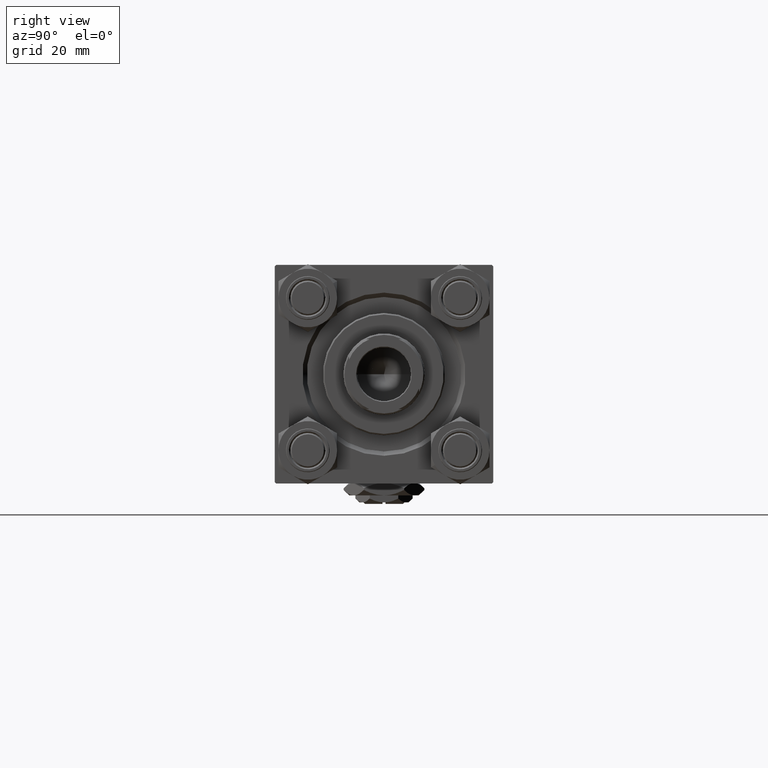
[diagram: clean part render]
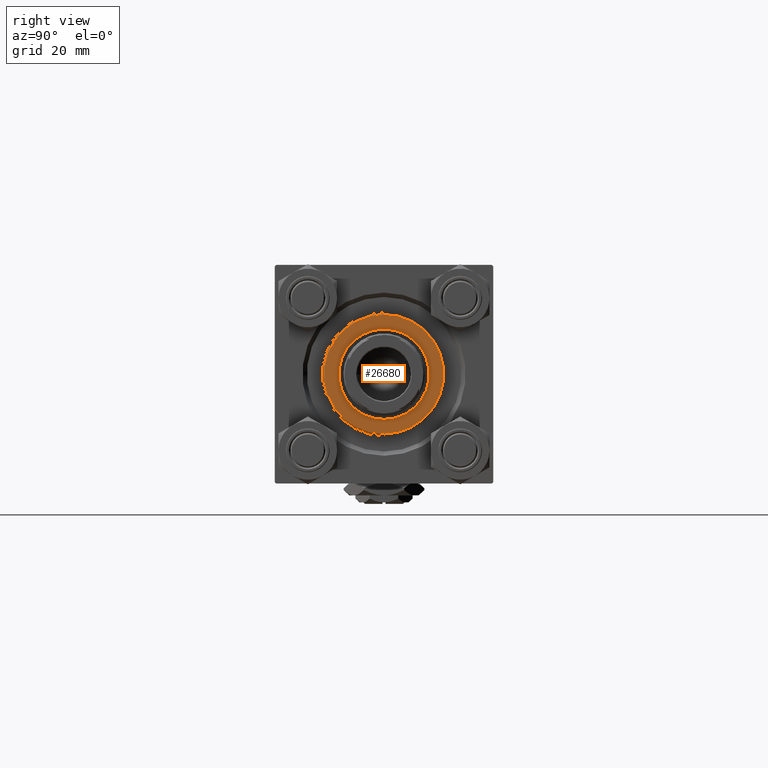
[diagram: same view with one face highlighted and labeled with its STEP entity id]
A machine part, right view. The second image highlights one B-rep face of the part: STEP entity #26680.
In plain terms, the highlighted planar face has unit normal (1, 0, -0).
Its self-contained STEP definition (entity closure, byte-faithful):
#1434 = CARTESIAN_POINT ( 'NONE',  ( 0.000000000000000000, 0.000000000000000000, 37.69999999999999574 ) ) ;
#5715 = VERTEX_POINT ( 'NONE', #19416 ) ;
#5950 = CARTESIAN_POINT ( 'NONE',  ( -15.50000000000000000, 1.898202538678397557E-15, 37.69999999999999574 ) ) ;
#7022 = ORIENTED_EDGE ( 'NONE', *, *, #13078, .T. ) ;
#8363 = AXIS2_PLACEMENT_3D ( 'NONE', #50540, #14944, #30910 ) ;
#9529 = DIRECTION ( 'NONE',  ( 0.000000000000000000, 0.000000000000000000, 1.000000000000000000 ) ) ;
#9887 = ORIENTED_EDGE ( 'NONE', *, *, #26139, .F. ) ;
#10358 = DIRECTION ( 'NONE',  ( 0.000000000000000000, 0.000000000000000000, 1.000000000000000000 ) ) ;
#10387 = CARTESIAN_POINT ( 'NONE',  ( 0.000000000000000000, 0.000000000000000000, 37.69999999999999574 ) ) ;
#10893 = CARTESIAN_POINT ( 'NONE',  ( 0.000000000000000000, 0.000000000000000000, 37.69999999999999574 ) ) ;
#12894 = VERTEX_POINT ( 'NONE', #23375 ) ;
#13078 = EDGE_CURVE ( 'NONE', #12894, #18314, #20906, .T. ) ;
#14944 = DIRECTION ( 'NONE',  ( 0.000000000000000000, 0.000000000000000000, 1.000000000000000000 ) ) ;
#15007 = CIRCLE ( 'NONE', #25010, 15.50000000000000000 ) ;
#15476 = EDGE_CURVE ( 'NONE', #18314, #12894, #23122, .T. ) ;
#17415 = DIRECTION ( 'NONE',  ( 1.000000000000000000, 0.000000000000000000, 0.000000000000000000 ) ) ;
#17632 = EDGE_CURVE ( 'NONE', #5715, #32141, #37388, .T. ) ;
#18314 = VERTEX_POINT ( 'NONE', #41478 ) ;
#18491 = DIRECTION ( 'NONE',  ( 0.000000000000000000, 0.000000000000000000, 1.000000000000000000 ) ) ;
#19416 = CARTESIAN_POINT ( 'NONE',  ( 15.50000000000000000, 0.000000000000000000, 37.69999999999999574 ) ) ;
#20906 = CIRCLE ( 'NONE', #8363, 20.49999999999999645 ) ;
#21549 = FACE_OUTER_BOUND ( 'NONE', #23311, .T. ) ;
#22549 = ORIENTED_EDGE ( 'NONE', *, *, #15476, .T. ) ;
#23122 = CIRCLE ( 'NONE', #39847, 20.49999999999999645 ) ;
#23158 = AXIS2_PLACEMENT_3D ( 'NONE', #10893, #18491, #38895 ) ;
#23311 = EDGE_LOOP ( 'NONE', ( #7022, #22549 ) ) ;
#23375 = CARTESIAN_POINT ( 'NONE',  ( -20.49999999999999645, 0.000000000000000000, 37.69999999999999574 ) ) ;
#24152 = ORIENTED_EDGE ( 'NONE', *, *, #17632, .F. ) ;
#25010 = AXIS2_PLACEMENT_3D ( 'NONE', #1434, #10358, #17415 ) ;
#25484 = CARTESIAN_POINT ( 'NONE',  ( 0.000000000000000000, 0.000000000000000000, 37.69999999999999574 ) ) ;
#26139 = EDGE_CURVE ( 'NONE', #32141, #5715, #15007, .T. ) ;
#26680 = ADVANCED_FACE ( 'NONE', ( #29394, #21549 ), #45107, .T. ) ;
#29394 = FACE_BOUND ( 'NONE', #30272, .T. ) ;
#30272 = EDGE_LOOP ( 'NONE', ( #24152, #9887 ) ) ;
#30525 = DIRECTION ( 'NONE',  ( 1.000000000000000000, 0.000000000000000000, 0.000000000000000000 ) ) ;
#30910 = DIRECTION ( 'NONE',  ( 1.000000000000000000, 0.000000000000000000, 0.000000000000000000 ) ) ;
#31734 = AXIS2_PLACEMENT_3D ( 'NONE', #25484, #9529, #45635 ) ;
#32141 = VERTEX_POINT ( 'NONE', #5950 ) ;
#34962 = DIRECTION ( 'NONE',  ( 0.000000000000000000, 0.000000000000000000, 1.000000000000000000 ) ) ;
#37388 = CIRCLE ( 'NONE', #23158, 15.50000000000000000 ) ;
#38895 = DIRECTION ( 'NONE',  ( 1.000000000000000000, 0.000000000000000000, 0.000000000000000000 ) ) ;
#39847 = AXIS2_PLACEMENT_3D ( 'NONE', #10387, #34962, #30525 ) ;
#41478 = CARTESIAN_POINT ( 'NONE',  ( 20.49999999999999645, 2.541142108230757480E-15, 37.69999999999999574 ) ) ;
#45107 = PLANE ( 'NONE',  #31734 ) ;
#45635 = DIRECTION ( 'NONE',  ( 1.000000000000000000, 0.000000000000000000, -0.000000000000000000 ) ) ;
#50540 = CARTESIAN_POINT ( 'NONE',  ( 0.000000000000000000, 0.000000000000000000, 37.69999999999999574 ) ) ;